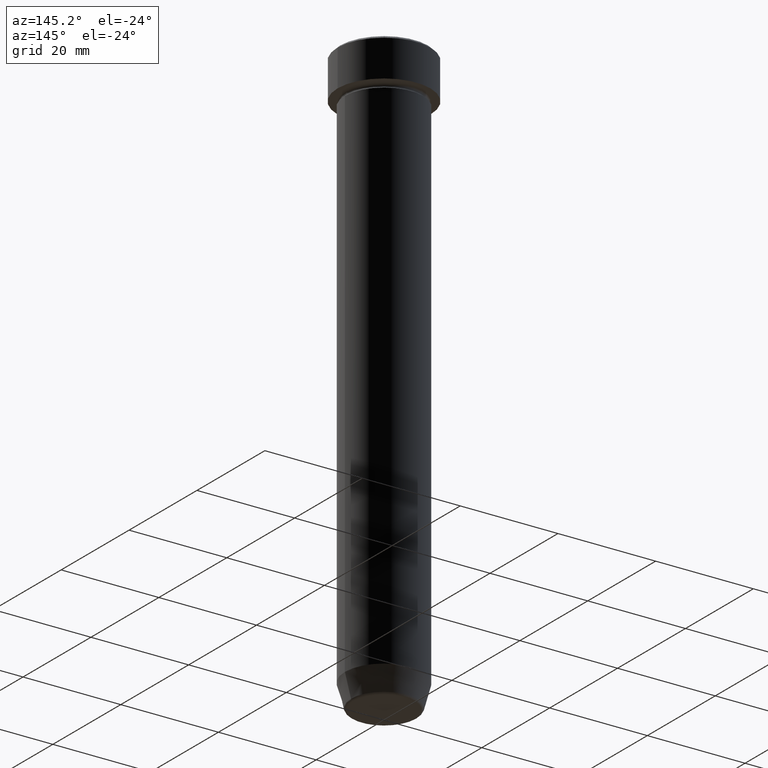
[diagram: clean part render]
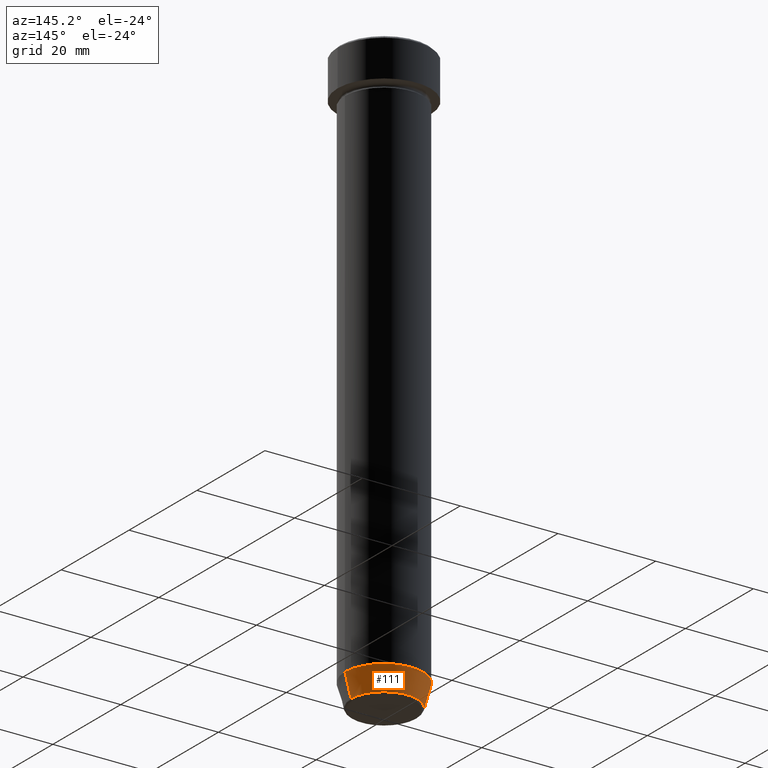
[diagram: same view with one face highlighted and labeled with its STEP entity id]
A machine part, auxiliary view. The second image highlights one B-rep face of the part: STEP entity #111.
In plain terms, the highlighted conical surface has half-angle 15 deg.
Its self-contained STEP definition (entity closure, byte-faithful):
#1 = CONICAL_SURFACE ( 'NONE', #483, 6.660254037844381081, 0.2617993877991502405 ) ;
#16 = EDGE_CURVE ( 'NONE', #438, #337, #241, .T. ) ;
#29 = EDGE_CURVE ( 'NONE', #337, #196, #80, .T. ) ;
#50 = AXIS2_PLACEMENT_3D ( 'NONE', #89, #451, #174 ) ;
#80 = LINE ( 'NONE', #537, #331 ) ;
#86 = DIRECTION ( 'NONE',  ( 1.000000000000000000, 0.000000000000000000, 0.000000000000000000 ) ) ;
#89 = CARTESIAN_POINT ( 'NONE',  ( 0.000000000000000000, 0.000000000000000000, -114.9999999999999858 ) ) ;
#93 = EDGE_CURVE ( 'NONE', #438, #417, #529, .T. ) ;
#111 = ADVANCED_FACE ( 'NONE', ( #324 ), #1, .T. ) ;
#115 = CARTESIAN_POINT ( 'NONE',  ( 6.660254037844381081, 0.000000000000000000, -120.0000000000000000 ) ) ;
#116 = CARTESIAN_POINT ( 'NONE',  ( 6.759553456999437770, 0.000000000000000000, -119.6294095225512564 ) ) ;
#117 = DIRECTION ( 'NONE',  ( -0.2588190451025214611, 3.169619151431774186E-17, 0.9659258262890679791 ) ) ;
#146 = ORIENTED_EDGE ( 'NONE', *, *, #16, .T. ) ;
#149 = EDGE_CURVE ( 'NONE', #417, #196, #434, .T. ) ;
#152 = ORIENTED_EDGE ( 'NONE', *, *, #29, .T. ) ;
#155 = CARTESIAN_POINT ( 'NONE',  ( -6.759553456999437770, 9.037619948979306213E-16, -119.6294095225512564 ) ) ;
#172 = DIRECTION ( 'NONE',  ( -1.000000000000000000, 0.000000000000000000, 0.000000000000000000 ) ) ;
#174 = DIRECTION ( 'NONE',  ( 1.000000000000000000, 0.000000000000000000, 0.000000000000000000 ) ) ;
#196 = VERTEX_POINT ( 'NONE', #272 ) ;
#241 = CIRCLE ( 'NONE', #304, 6.759553456999436882 ) ;
#246 = ORIENTED_EDGE ( 'NONE', *, *, #149, .F. ) ;
#272 = CARTESIAN_POINT ( 'NONE',  ( -8.000000000000000000, 9.797174393178825657E-16, -114.9999999999999858 ) ) ;
#281 = DIRECTION ( 'NONE',  ( -0.000000000000000000, -0.000000000000000000, 1.000000000000000000 ) ) ;
#304 = AXIS2_PLACEMENT_3D ( 'NONE', #582, #541, #172 ) ;
#306 = VECTOR ( 'NONE', #482, 1000.000000000000114 ) ;
#324 = FACE_OUTER_BOUND ( 'NONE', #401, .T. ) ;
#331 = VECTOR ( 'NONE', #117, 1000.000000000000114 ) ;
#337 = VERTEX_POINT ( 'NONE', #155 ) ;
#401 = EDGE_LOOP ( 'NONE', ( #146, #152, #246, #523 ) ) ;
#403 = CARTESIAN_POINT ( 'NONE',  ( 0.000000000000000000, 0.000000000000000000, -120.0000000000000000 ) ) ;
#417 = VERTEX_POINT ( 'NONE', #558 ) ;
#434 = CIRCLE ( 'NONE', #50, 8.000000000000000000 ) ;
#438 = VERTEX_POINT ( 'NONE', #116 ) ;
#451 = DIRECTION ( 'NONE',  ( -0.000000000000000000, -0.000000000000000000, 1.000000000000000000 ) ) ;
#482 = DIRECTION ( 'NONE',  ( 0.2588190451025214611, 0.000000000000000000, 0.9659258262890679791 ) ) ;
#483 = AXIS2_PLACEMENT_3D ( 'NONE', #403, #281, #86 ) ;
#523 = ORIENTED_EDGE ( 'NONE', *, *, #93, .F. ) ;
#529 = LINE ( 'NONE', #115, #306 ) ;
#537 = CARTESIAN_POINT ( 'NONE',  ( -6.660254037844381081, 8.156458788954356817E-16, -120.0000000000000000 ) ) ;
#541 = DIRECTION ( 'NONE',  ( -0.000000000000000000, -0.000000000000000000, 1.000000000000000000 ) ) ;
#558 = CARTESIAN_POINT ( 'NONE',  ( 8.000000000000000000, 0.000000000000000000, -114.9999999999999858 ) ) ;
#582 = CARTESIAN_POINT ( 'NONE',  ( 0.000000000000000000, 0.000000000000000000, -119.6294095225512564 ) ) ;